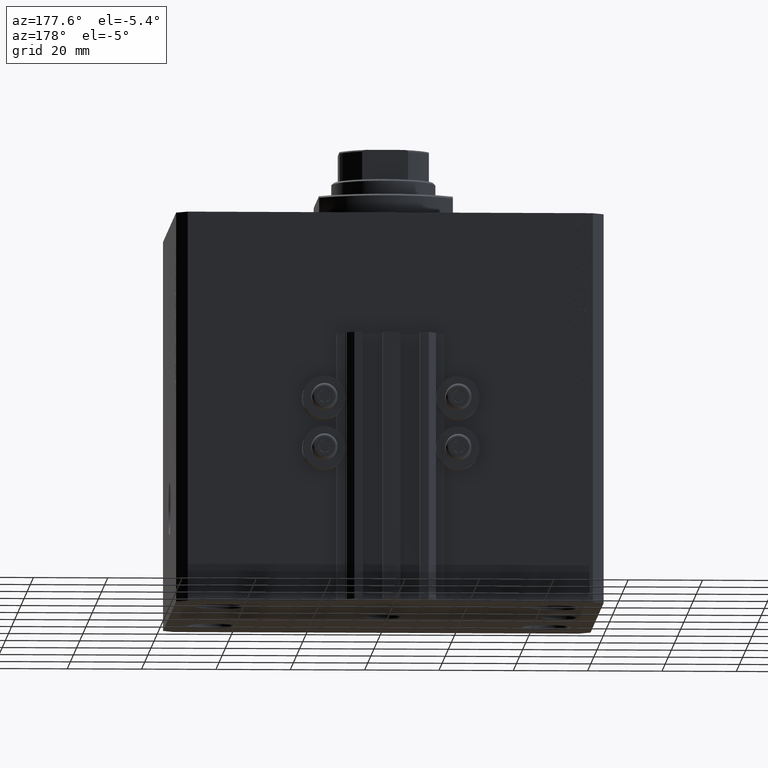
[diagram: clean part render]
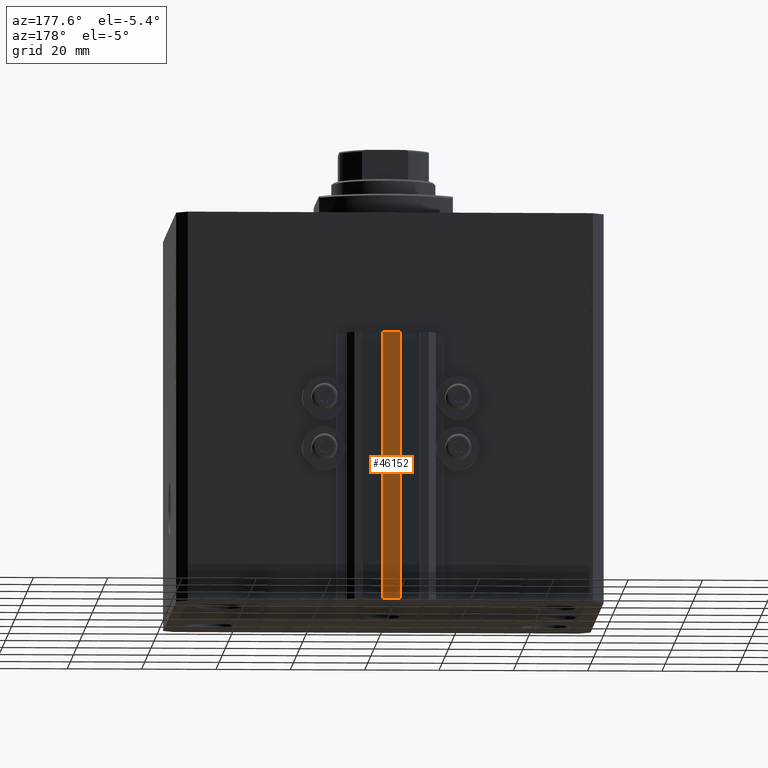
[diagram: same view with one face highlighted and labeled with its STEP entity id]
A machine part, auxiliary view. The second image highlights one B-rep face of the part: STEP entity #46152.
In plain terms, the highlighted planar face has unit normal (0, -1, 0).
Its self-contained STEP definition (entity closure, byte-faithful):
#317 = DIRECTION ( 'NONE',  ( 0.000000000000000000, -0.000000000000000000, -1.000000000000000000 ) ) ;
#888 = CARTESIAN_POINT ( 'NONE',  ( -2.350000000000003642, 53.00000000000000000, -33.00000000000000000 ) ) ;
#1033 = LINE ( 'NONE', #9180, #18902 ) ;
#2529 = CARTESIAN_POINT ( 'NONE',  ( 2.349999999999999645, 53.00000000000000000, -105.0000000000000000 ) ) ;
#3681 = VERTEX_POINT ( 'NONE', #43017 ) ;
#6338 = CARTESIAN_POINT ( 'NONE',  ( -2.350000000000003642, 53.00000000000000000, -33.00000000000000000 ) ) ;
#6589 = DIRECTION ( 'NONE',  ( 0.000000000000000000, 0.000000000000000000, 1.000000000000000000 ) ) ;
#7408 = EDGE_CURVE ( 'NONE', #43717, #38476, #27877, .T. ) ;
#7991 = CARTESIAN_POINT ( 'NONE',  ( 2.349999999999999645, 53.00000000000000000, -105.0000000000000000 ) ) ;
#8215 = DIRECTION ( 'NONE',  ( 0.000000000000000000, -1.000000000000000000, 0.000000000000000000 ) ) ;
#8323 = LINE ( 'NONE', #888, #35480 ) ;
#9180 = CARTESIAN_POINT ( 'NONE',  ( -2.350000000000003642, 53.00000000000000000, -105.0000000000000000 ) ) ;
#13010 = DIRECTION ( 'NONE',  ( 1.000000000000000000, 0.000000000000000000, 0.000000000000000000 ) ) ;
#14257 = DIRECTION ( 'NONE',  ( 0.000000000000000000, 0.000000000000000000, 1.000000000000000000 ) ) ;
#15632 = CARTESIAN_POINT ( 'NONE',  ( -2.350000000000003642, 53.00000000000000000, -105.0000000000000000 ) ) ;
#17598 = CARTESIAN_POINT ( 'NONE',  ( -2.350000000000003642, 53.00000000000000000, -105.0000000000000000 ) ) ;
#18902 = VECTOR ( 'NONE', #13010, 1000.000000000000000 ) ;
#19536 = ORIENTED_EDGE ( 'NONE', *, *, #35746, .F. ) ;
#20533 = VECTOR ( 'NONE', #14257, 1000.000000000000000 ) ;
#21917 = AXIS2_PLACEMENT_3D ( 'NONE', #15632, #8215, #317 ) ;
#23473 = ORIENTED_EDGE ( 'NONE', *, *, #23540, .T. ) ;
#23540 = EDGE_CURVE ( 'NONE', #38476, #3681, #8323, .T. ) ;
#24550 = ORIENTED_EDGE ( 'NONE', *, *, #30838, .F. ) ;
#25451 = CARTESIAN_POINT ( 'NONE',  ( -2.350000000000003642, 53.00000000000000000, -105.0000000000000000 ) ) ;
#26858 = PLANE ( 'NONE',  #21917 ) ;
#27647 = LINE ( 'NONE', #2529, #31738 ) ;
#27877 = LINE ( 'NONE', #17598, #20533 ) ;
#29239 = EDGE_LOOP ( 'NONE', ( #23473, #24550, #19536, #39431 ) ) ;
#30838 = EDGE_CURVE ( 'NONE', #47306, #3681, #27647, .T. ) ;
#31738 = VECTOR ( 'NONE', #6589, 1000.000000000000000 ) ;
#35480 = VECTOR ( 'NONE', #41325, 1000.000000000000000 ) ;
#35746 = EDGE_CURVE ( 'NONE', #43717, #47306, #1033, .T. ) ;
#38476 = VERTEX_POINT ( 'NONE', #6338 ) ;
#39431 = ORIENTED_EDGE ( 'NONE', *, *, #7408, .T. ) ;
#40529 = FACE_OUTER_BOUND ( 'NONE', #29239, .T. ) ;
#41325 = DIRECTION ( 'NONE',  ( 1.000000000000000000, 0.000000000000000000, 0.000000000000000000 ) ) ;
#43017 = CARTESIAN_POINT ( 'NONE',  ( 2.349999999999999645, 53.00000000000000000, -33.00000000000000000 ) ) ;
#43717 = VERTEX_POINT ( 'NONE', #25451 ) ;
#46152 = ADVANCED_FACE ( 'NONE', ( #40529 ), #26858, .F. ) ;
#47306 = VERTEX_POINT ( 'NONE', #7991 ) ;